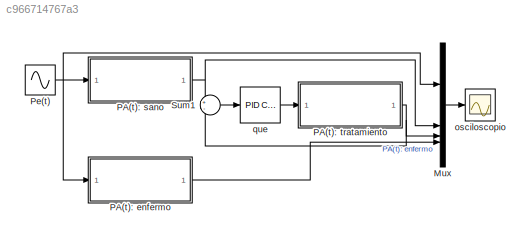
MODEL slx_c966714767a3
KIND model
CONFIG AbsTol = auto
CONFIG EnableMultiTasking = off
CONFIG FixedStep = auto
CONFIG MaxStep = 1E-3
CONFIG MinStep = auto
CONFIG RelTol = 1e-3
CONFIG SampleTimeConstraint = Unconstrained
CONFIG SolverName = ode23
CONFIG StartTime = 0.0
CONFIG StopTime = 10.0
BLOCK [Mux] Mux
  DisplayOption = bar
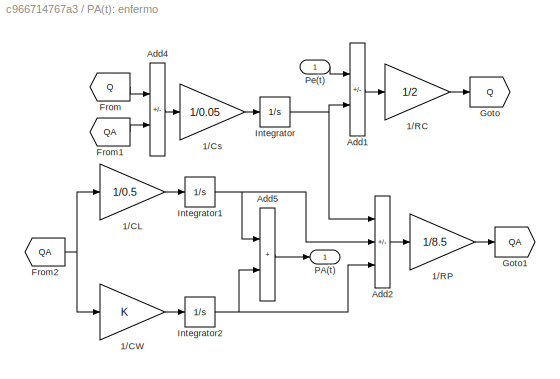
BLOCK [SubSystem] PA(t): enfermo
BLOCK [Gain] PA(t): enfermo/1//CL
  Gain = 1/0.5
BLOCK [Gain] PA(t): enfermo/1//CW
BLOCK [Gain] PA(t): enfermo/1//Cs
  Gain = 1/0.05
BLOCK [Gain] PA(t): enfermo/1//RC
  Gain = 1/2
BLOCK [Gain] PA(t): enfermo/1//RP
  Gain = 1/8.5
BLOCK [Sum] PA(t): enfermo/Add1
  IconShape = rectangular
  Inputs = +-
BLOCK [Sum] PA(t): enfermo/Add2
  IconShape = rectangular
  Inputs = +--
BLOCK [Sum] PA(t): enfermo/Add4
  IconShape = rectangular
  Inputs = +-
BLOCK [Sum] PA(t): enfermo/Add5
  IconShape = rectangular
BLOCK [From] PA(t): enfermo/From
  GotoTag = Q
BLOCK [From] PA(t): enfermo/From1
  GotoTag = QA
BLOCK [From] PA(t): enfermo/From2
  GotoTag = QA
BLOCK [Goto] PA(t): enfermo/Goto
  GotoTag = Q
BLOCK [Goto] PA(t): enfermo/Goto1
  GotoTag = QA
BLOCK [Integrator] PA(t): enfermo/Integrator
BLOCK [Integrator] PA(t): enfermo/Integrator1
BLOCK [Integrator] PA(t): enfermo/Integrator2
BLOCK [Outport] PA(t): enfermo/PA(t)
BLOCK [Inport] PA(t): enfermo/Pe(t)
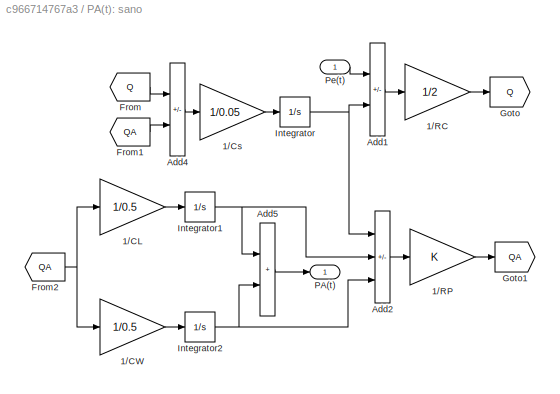
BLOCK [SubSystem] PA(t): sano
BLOCK [Gain] PA(t): sano/1//CL
  Gain = 1/0.5
BLOCK [Gain] PA(t): sano/1//CW
  Gain = 1/0.5
BLOCK [Gain] PA(t): sano/1//Cs
  Gain = 1/0.05
BLOCK [Gain] PA(t): sano/1//RC
  Gain = 1/2
BLOCK [Gain] PA(t): sano/1//RP
BLOCK [Sum] PA(t): sano/Add1
  IconShape = rectangular
  Inputs = +-
BLOCK [Sum] PA(t): sano/Add2
  IconShape = rectangular
  Inputs = +--
BLOCK [Sum] PA(t): sano/Add4
  IconShape = rectangular
  Inputs = +-
BLOCK [Sum] PA(t): sano/Add5
  IconShape = rectangular
BLOCK [From] PA(t): sano/From
  GotoTag = Q
BLOCK [From] PA(t): sano/From1
  GotoTag = QA
BLOCK [From] PA(t): sano/From2
  GotoTag = QA
BLOCK [Goto] PA(t): sano/Goto
  GotoTag = Q
BLOCK [Goto] PA(t): sano/Goto1
  GotoTag = QA
BLOCK [Integrator] PA(t): sano/Integrator
BLOCK [Integrator] PA(t): sano/Integrator1
BLOCK [Integrator] PA(t): sano/Integrator2
BLOCK [Outport] PA(t): sano/PA(t)
BLOCK [Inport] PA(t): sano/Pe(t)
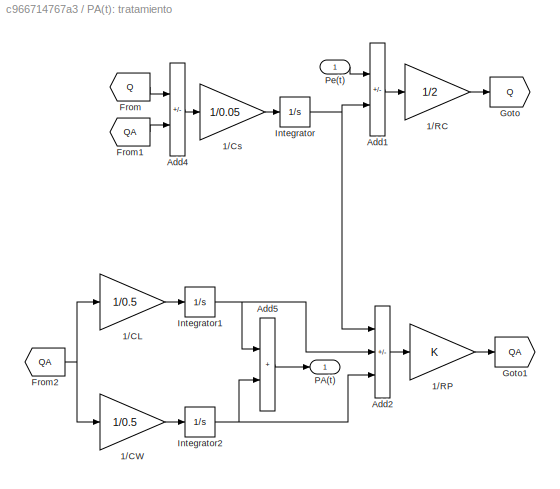
BLOCK [SubSystem] PA(t): tratamiento
BLOCK [Gain] PA(t): tratamiento/1//CL
  Gain = 1/0.5
BLOCK [Gain] PA(t): tratamiento/1//CW
  Gain = 1/0.5
BLOCK [Gain] PA(t): tratamiento/1//Cs
  Gain = 1/0.05
BLOCK [Gain] PA(t): tratamiento/1//RC
  Gain = 1/2
BLOCK [Gain] PA(t): tratamiento/1//RP
BLOCK [Sum] PA(t): tratamiento/Add1
  IconShape = rectangular
  Inputs = +-
BLOCK [Sum] PA(t): tratamiento/Add2
  IconShape = rectangular
  Inputs = +--
BLOCK [Sum] PA(t): tratamiento/Add4
  IconShape = rectangular
  Inputs = +-
BLOCK [Sum] PA(t): tratamiento/Add5
  IconShape = rectangular
BLOCK [From] PA(t): tratamiento/From
  GotoTag = Q
BLOCK [From] PA(t): tratamiento/From1
  GotoTag = QA
BLOCK [From] PA(t): tratamiento/From2
  GotoTag = QA
BLOCK [Goto] PA(t): tratamiento/Goto
  GotoTag = Q
BLOCK [Goto] PA(t): tratamiento/Goto1
  GotoTag = QA
BLOCK [Integrator] PA(t): tratamiento/Integrator
BLOCK [Integrator] PA(t): tratamiento/Integrator1
BLOCK [Integrator] PA(t): tratamiento/Integrator2
BLOCK [Outport] PA(t): tratamiento/PA(t)
BLOCK [Inport] PA(t): tratamiento/Pe(t)
BLOCK [Sin] Pe(t)
  Frequency = 1.5
  SampleTime = 0
BLOCK [Sum] Sum1
  Inputs = +-
BLOCK [Scope] osciloscopio
  Floating = off
  NumInputPorts = 1
  ScopeSpecificationString = Simulink.scopes.TimeScopeBlockCfg('CurrentConfiguration', extmgr.ConfigurationSet(extmgr.Configuration('Core','General UI',true,'FigureColor',[1 1 1]),extmgr.Configuration('Core','Source UI',true),extmgr.Configuration('Sources','WiredSimulink',true),extmgr.Configuration('Visuals','Time Domain',true,'PlotType','Stairs','SerializedDisplays',{struct('MinYLimReal','-1.25','MaxYLimReal','1.25','YLabelR...<+2379ch>
BLOCK [Reference] que  REF=slpidlib/PID Controller
  SourceBlock = slpidlib/PID Controller
  SourceType = PID 1dof
LINE Mux:1 -> osciloscopio:1
LINE PA(t): enfermo/1//CL:1 -> PA(t): enfermo/Integrator1:1
LINE PA(t): enfermo/1//CW:1 -> PA(t): enfermo/Integrator2:1
LINE PA(t): enfermo/1//Cs:1 -> PA(t): enfermo/Integrator:1
LINE PA(t): enfermo/1//RC:1 -> PA(t): enfermo/Goto:1
LINE PA(t): enfermo/1//RP:1 -> PA(t): enfermo/Goto1:1
LINE PA(t): enfermo/Add1:1 -> PA(t): enfermo/1//RC:1
LINE PA(t): enfermo/Add2:1 -> PA(t): enfermo/1//RP:1
LINE PA(t): enfermo/Add4:1 -> PA(t): enfermo/1//Cs:1
LINE PA(t): enfermo/Add5:1 -> PA(t): enfermo/PA(t):1
LINE PA(t): enfermo/From1:1 -> PA(t): enfermo/Add4:2
NET PA(t): enfermo/From2:1 -> PA(t): enfermo/1//CL:1, PA(t): enfermo/1//CW:1
LINE PA(t): enfermo/From:1 -> PA(t): enfermo/Add4:1
NET PA(t): enfermo/Integrator1:1 -> PA(t): enfermo/Add2:2, PA(t): enfermo/Add5:1
NET PA(t): enfermo/Integrator2:1 -> PA(t): enfermo/Add2:3, PA(t): enfermo/Add5:2
NET PA(t): enfermo/Integrator:1 -> PA(t): enfermo/Add1:2, PA(t): enfermo/Add2:1
LINE PA(t): enfermo/Pe(t):1 -> PA(t): enfermo/Add1:1
LINE PA(t): enfermo:1 -> Mux:4
LINE PA(t): sano/1//CL:1 -> PA(t): sano/Integrator1:1
LINE PA(t): sano/1//CW:1 -> PA(t): sano/Integrator2:1
LINE PA(t): sano/1//Cs:1 -> PA(t): sano/Integrator:1
LINE PA(t): sano/1//RC:1 -> PA(t): sano/Goto:1
LINE PA(t): sano/1//RP:1 -> PA(t): sano/Goto1:1
LINE PA(t): sano/Add1:1 -> PA(t): sano/1//RC:1
LINE PA(t): sano/Add2:1 -> PA(t): sano/1//RP:1
LINE PA(t): sano/Add4:1 -> PA(t): sano/1//Cs:1
LINE PA(t): sano/Add5:1 -> PA(t): sano/PA(t):1
LINE PA(t): sano/From1:1 -> PA(t): sano/Add4:2
NET PA(t): sano/From2:1 -> PA(t): sano/1//CL:1, PA(t): sano/1//CW:1
LINE PA(t): sano/From:1 -> PA(t): sano/Add4:1
NET PA(t): sano/Integrator1:1 -> PA(t): sano/Add2:2, PA(t): sano/Add5:1
NET PA(t): sano/Integrator2:1 -> PA(t): sano/Add2:3, PA(t): sano/Add5:2
NET PA(t): sano/Integrator:1 -> PA(t): sano/Add1:2, PA(t): sano/Add2:1
LINE PA(t): sano/Pe(t):1 -> PA(t): sano/Add1:1
NET PA(t): sano:1 -> Mux:2, Sum1:1
LINE PA(t): tratamiento/1//CL:1 -> PA(t): tratamiento/Integrator1:1
LINE PA(t): tratamiento/1//CW:1 -> PA(t): tratamiento/Integrator2:1
LINE PA(t): tratamiento/1//Cs:1 -> PA(t): tratamiento/Integrator:1
LINE PA(t): tratamiento/1//RC:1 -> PA(t): tratamiento/Goto:1
LINE PA(t): tratamiento/1//RP:1 -> PA(t): tratamiento/Goto1:1
LINE PA(t): tratamiento/Add1:1 -> PA(t): tratamiento/1//RC:1
LINE PA(t): tratamiento/Add2:1 -> PA(t): tratamiento/1//RP:1
LINE PA(t): tratamiento/Add4:1 -> PA(t): tratamiento/1//Cs:1
LINE PA(t): tratamiento/Add5:1 -> PA(t): tratamiento/PA(t):1
LINE PA(t): tratamiento/From1:1 -> PA(t): tratamiento/Add4:2
NET PA(t): tratamiento/From2:1 -> PA(t): tratamiento/1//CL:1, PA(t): tratamiento/1//CW:1
LINE PA(t): tratamiento/From:1 -> PA(t): tratamiento/Add4:1
NET PA(t): tratamiento/Integrator1:1 -> PA(t): tratamiento/Add2:2, PA(t): tratamiento/Add5:1
NET PA(t): tratamiento/Integrator2:1 -> PA(t): tratamiento/Add2:3, PA(t): tratamiento/Add5:2
NET PA(t): tratamiento/Integrator:1 -> PA(t): tratamiento/Add1:2, PA(t): tratamiento/Add2:1
LINE PA(t): tratamiento/Pe(t):1 -> PA(t): tratamiento/Add1:1
NET PA(t): tratamiento:1 -> Mux:3, Sum1:2
NET Pe(t):1 -> Mux:1, PA(t): enfermo:1, PA(t): sano:1
LINE Sum1:1 -> que:1
LINE que:1 -> PA(t): tratamiento:1
note: NET lines group one-source signal fan-out (src -> all destinations, sorted); 1:1 wires keep LINE
